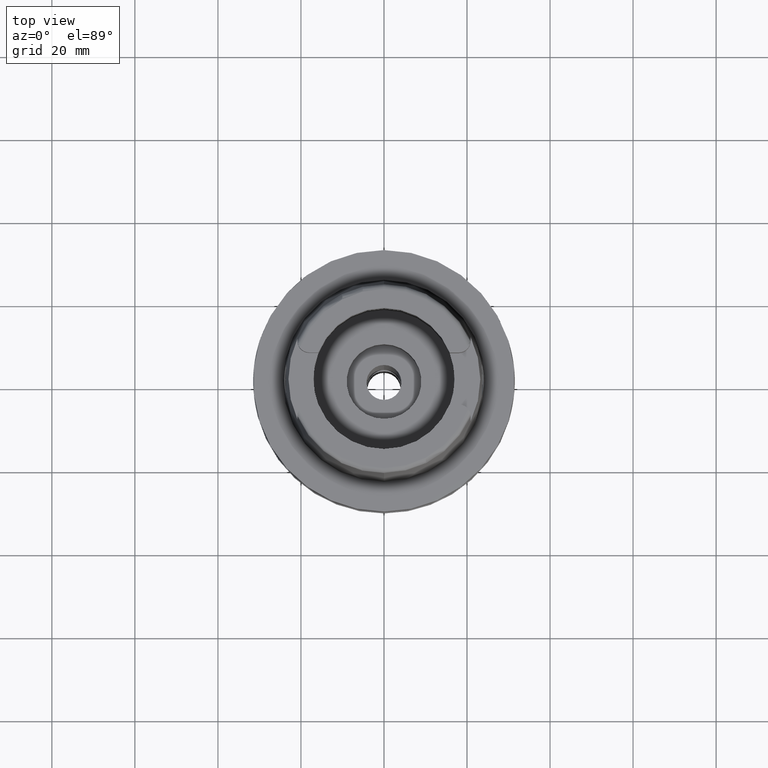
[diagram: clean part render]
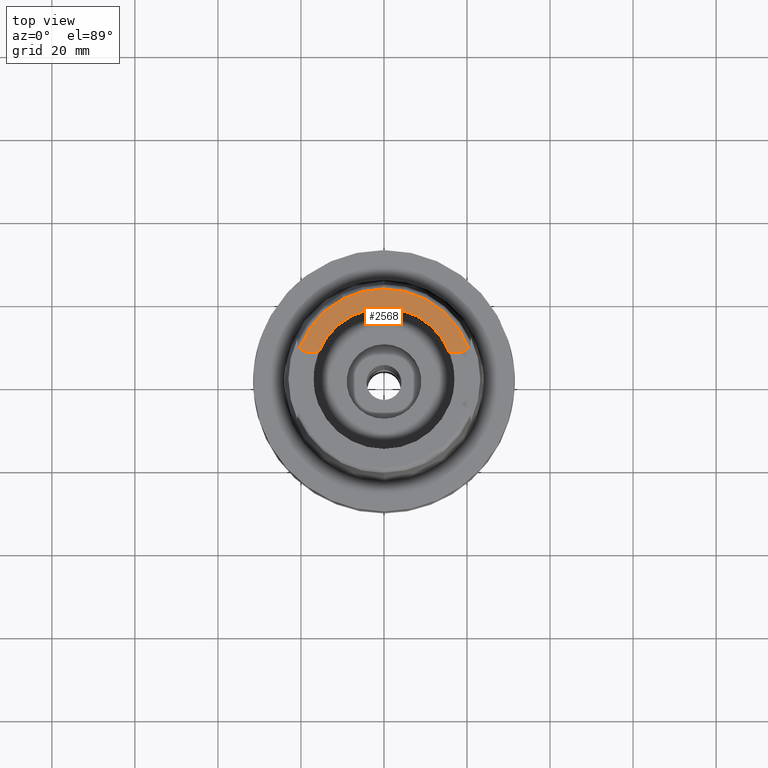
[diagram: same view with one face highlighted and labeled with its STEP entity id]
A machine part, top view. The second image highlights one B-rep face of the part: STEP entity #2568.
In plain terms, the highlighted planar face has unit normal (0, 0, 1).
Its self-contained STEP definition (entity closure, byte-faithful):
#17=CARTESIAN_POINT('',(-1.799E1,9.15E0,3.2E1));
#18=DIRECTION('',(0.E0,0.E0,-1.E0));
#19=DIRECTION('',(0.E0,-1.E0,0.E0));
#20=AXIS2_PLACEMENT_3D('',#17,#18,#19);
#26=CARTESIAN_POINT('',(0.E0,0.E0,3.2E1));
#27=DIRECTION('',(0.E0,0.E0,-1.E0));
#28=DIRECTION('',(-9.395199128801E-1,3.424942821446E-1,0.E0));
#29=AXIS2_PLACEMENT_3D('',#26,#27,#28);
#34=CARTESIAN_POINT('',(1.799E1,9.15E0,3.2E1));
#35=DIRECTION('',(0.E0,0.E0,-1.E0));
#36=DIRECTION('',(7.912216523764E-1,-6.115294733787E-1,0.E0));
#37=AXIS2_PLACEMENT_3D('',#34,#35,#36);
#42=CARTESIAN_POINT('',(0.E0,0.E0,3.2E1));
#43=DIRECTION('',(0.E0,0.E0,1.E0));
#44=DIRECTION('',(9.294994374136E-1,3.688235294118E-1,0.E0));
#45=AXIS2_PLACEMENT_3D('',#42,#43,#44);
#50=CARTESIAN_POINT('',(0.E0,0.E0,3.2E1));
#51=DIRECTION('',(0.E0,0.E0,1.E0));
#52=DIRECTION('',(0.E0,1.E0,0.E0));
#53=AXIS2_PLACEMENT_3D('',#50,#51,#52);
#58=DIRECTION('',(1.E0,8.644330667353E-14,0.E0));
#59=VECTOR('',#58,2.188509563969E0);
#60=CARTESIAN_POINT('',(-1.799E1,6.27E0,3.2E1));
#61=LINE('',#60,#59);
#361=DIRECTION('',(1.E0,-8.522579531193E-14,0.E0));
#362=VECTOR('',#361,2.188509563969E0);
#363=CARTESIAN_POINT('',(1.580149043603E1,6.27E0,3.2E1));
#364=LINE('',#363,#362);
#2219=CARTESIAN_POINT('',(-1.799E1,6.27E0,3.2E1));
#2220=CARTESIAN_POINT('',(-1.580149043603E1,6.27E0,3.2E1));
#2221=VERTEX_POINT('',#2219);
#2222=VERTEX_POINT('',#2220);
#2223=CARTESIAN_POINT('',(-2.026871835884E1,7.388795116670E0,3.2E1));
#2224=VERTEX_POINT('',#2223);
#2225=CARTESIAN_POINT('',(2.026871835884E1,7.388795116669E0,3.2E1));
#2226=VERTEX_POINT('',#2225);
#2227=CARTESIAN_POINT('',(1.799E1,6.27E0,3.2E1));
#2228=VERTEX_POINT('',#2227);
#2229=CARTESIAN_POINT('',(1.580149043603E1,6.27E0,3.2E1));
#2230=VERTEX_POINT('',#2229);
#2231=CARTESIAN_POINT('',(0.E0,1.7E1,3.2E1));
#2232=VERTEX_POINT('',#2231);
#2547=CARTESIAN_POINT('',(0.E0,0.E0,3.2E1));
#2548=DIRECTION('',(0.E0,0.E0,1.E0));
#2549=DIRECTION('',(0.E0,1.E0,0.E0));
#2550=AXIS2_PLACEMENT_3D('',#2547,#2548,#2549);
#2551=PLANE('',#2550);
#2553=ORIENTED_EDGE('',*,*,#2552,.F.);
#2555=ORIENTED_EDGE('',*,*,#2554,.T.);
#2557=ORIENTED_EDGE('',*,*,#2556,.T.);
#2559=ORIENTED_EDGE('',*,*,#2558,.T.);
#2561=ORIENTED_EDGE('',*,*,#2560,.F.);
#2563=ORIENTED_EDGE('',*,*,#2562,.T.);
#2565=ORIENTED_EDGE('',*,*,#2564,.T.);
#2566=EDGE_LOOP('',(#2553,#2555,#2557,#2559,#2561,#2563,#2565));
#2567=FACE_OUTER_BOUND('',#2566,.F.);
#21=CIRCLE('',#20,2.88E0);
#30=CIRCLE('',#29,2.157348458609E1);
#38=CIRCLE('',#37,2.88E0);
#46=CIRCLE('',#45,1.7E1);
#54=CIRCLE('',#53,1.7E1);
#2552=EDGE_CURVE('',#2221,#2222,#61,.T.);
#2554=EDGE_CURVE('',#2221,#2224,#21,.T.);
#2556=EDGE_CURVE('',#2224,#2226,#30,.T.);
#2558=EDGE_CURVE('',#2226,#2228,#38,.T.);
#2560=EDGE_CURVE('',#2230,#2228,#364,.T.);
#2562=EDGE_CURVE('',#2230,#2232,#46,.T.);
#2564=EDGE_CURVE('',#2232,#2222,#54,.T.);
#2568=ADVANCED_FACE('',(#2567),#2551,.T.);